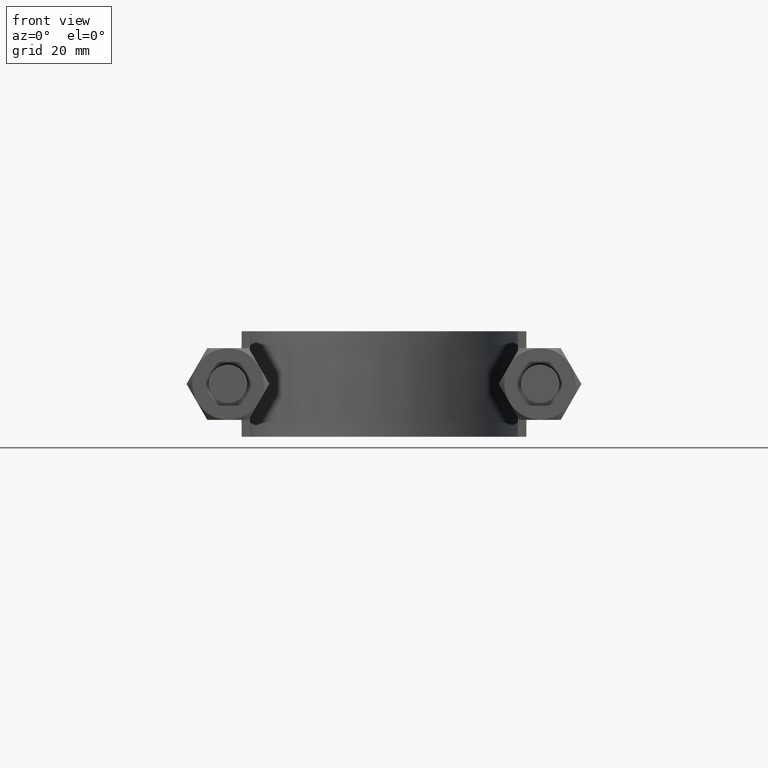
[diagram: clean part render]
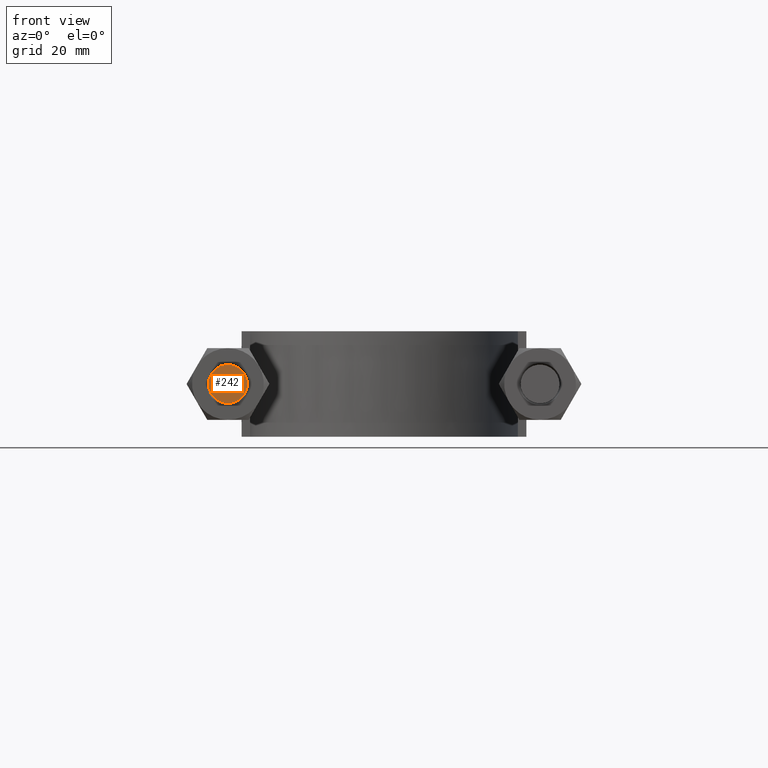
[diagram: same view with one face highlighted and labeled with its STEP entity id]
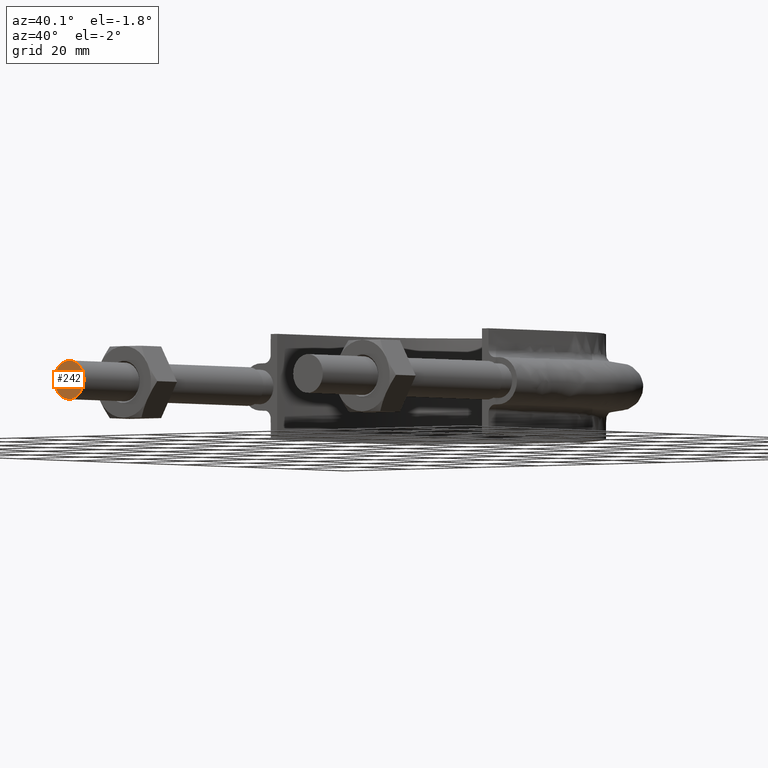
[diagram: same view with one face highlighted and labeled with its STEP entity id]
A machine part, front view. The second image highlights one B-rep face of the part: STEP entity #242.
A second angle (auxiliary view) of the same face is appended — the face is thin or edge-on in the first view.
In plain terms, the highlighted planar face has unit normal (-0, -1, -0).
Its self-contained STEP definition (entity closure, byte-faithful):
#242 = ADVANCED_FACE( '', ( #352 ), #353, .T. );
#352 = FACE_OUTER_BOUND( '', #1349, .T. );
#353 = PLANE( '', #1350 );
#1349 = EDGE_LOOP( '', ( #1623 ) );
#1350 = AXIS2_PLACEMENT_3D( '', #1624, #1625, #1626 );
#1623 = ORIENTED_EDGE( '', *, *, #2050, .T. );
#1624 = CARTESIAN_POINT( '', ( -37.0000000000000, 4.53104350914280E-015, 0.000000000000000 ) );
#1625 = DIRECTION( '', ( -1.22460635382238E-016, -1.00000000000000, -1.83690953073357E-016 ) );
#1626 = DIRECTION( '', ( -1.00000000000000, 1.22460635382238E-016, 0.000000000000000 ) );
#2050 = EDGE_CURVE( '', #2231, #2231, #2232, .T. );
#2231 = VERTEX_POINT( '', #2728 );
#2232 = CIRCLE( '', #2729, 4.60000000000000 );
#2728 = CARTESIAN_POINT( '', ( -41.6000000000000, 5.09436243190109E-015, 0.000000000000000 ) );
#2729 = AXIS2_PLACEMENT_3D( '', #3137, #3138, #3139 );
#3137 = CARTESIAN_POINT( '', ( -37.0000000000000, 4.53104350914280E-015, 0.000000000000000 ) );
#3138 = DIRECTION( '', ( -1.22460635382238E-016, -1.00000000000000, -1.83690953073357E-016 ) );
#3139 = DIRECTION( '', ( -1.00000000000000, 1.22460635382238E-016, 0.000000000000000 ) );